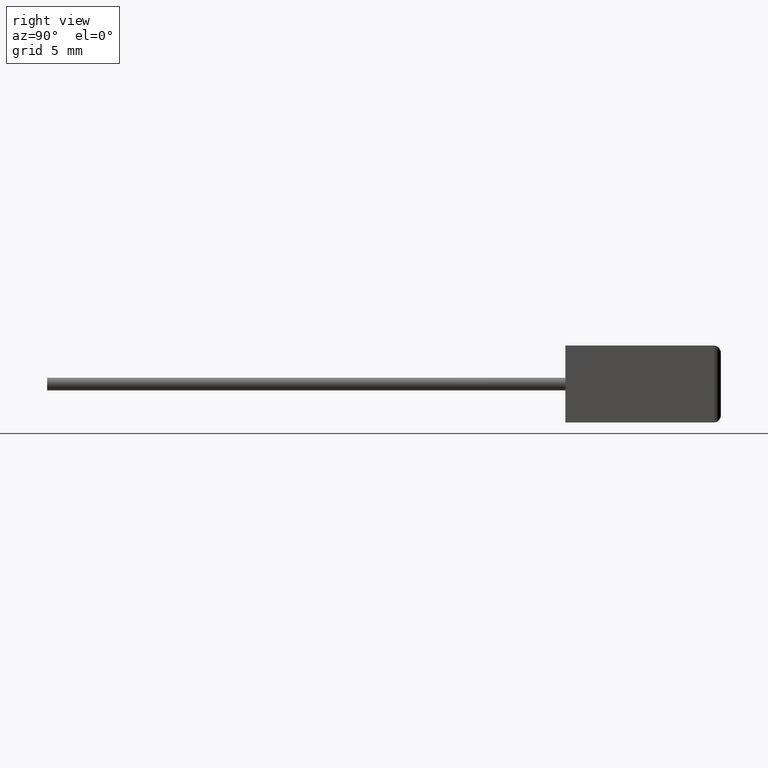
[diagram: clean part render]
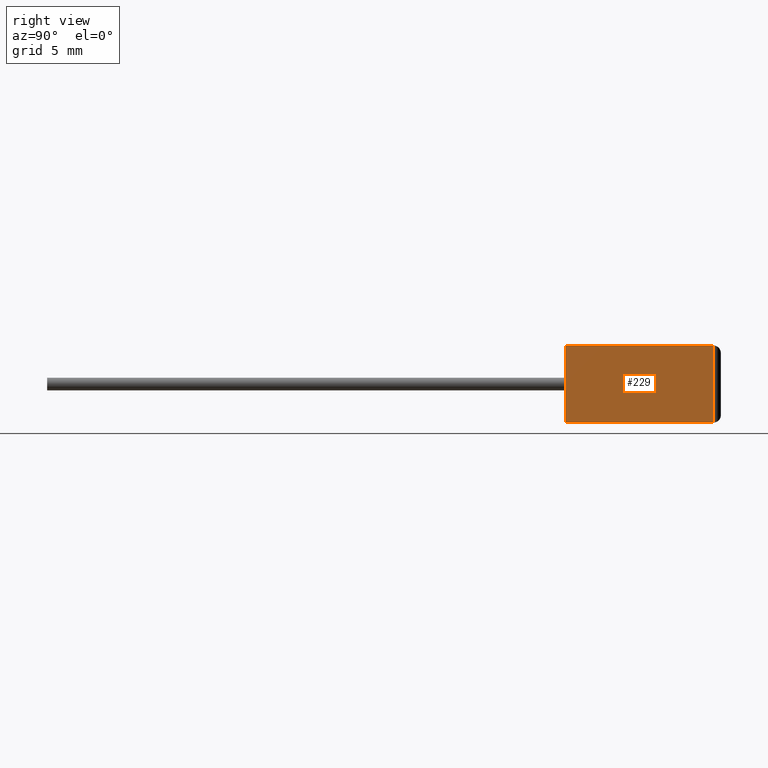
[diagram: same view with one face highlighted and labeled with its STEP entity id]
A machine part, right view. The second image highlights one B-rep face of the part: STEP entity #229.
In plain terms, the highlighted planar face has unit normal (-1, 0, 0).
Its self-contained STEP definition (entity closure, byte-faithful):
#8 = DIRECTION ( 'NONE',  ( -0.0000000000000000000, -0.0000000000000000000, -1.000000000000000000 ) ) ;
#71 = VERTEX_POINT ( 'NONE', #2208 ) ;
#82 = EDGE_CURVE ( 'NONE', #71, #1536, #95, .T. ) ;
#95 = LINE ( 'NONE', #1103, #718 ) ;
#152 = ORIENTED_EDGE ( 'NONE', *, *, #1038, .T. ) ;
#229 = ADVANCED_FACE ( 'NONE', ( #1772 ), #402, .F. ) ;
#250 = VECTOR ( 'NONE', #1057, 1000.000000000000000 ) ;
#381 = EDGE_CURVE ( 'NONE', #670, #1875, #2184, .T. ) ;
#402 = PLANE ( 'NONE',  #2327 ) ;
#418 = DIRECTION ( 'NONE',  ( -1.000000000000000000, 0.0000000000000000000, 0.0000000000000000000 ) ) ;
#530 = DIRECTION ( 'NONE',  ( -0.0000000000000000000, -0.0000000000000000000, 1.000000000000000000 ) ) ;
#611 = VECTOR ( 'NONE', #530, 1000.000000000000000 ) ;
#670 = VERTEX_POINT ( 'NONE', #2061 ) ;
#672 = CARTESIAN_POINT ( 'NONE',  ( 18.50000000000000000, 9.999999999999996400, 5.200000000000000200 ) ) ;
#718 = VECTOR ( 'NONE', #1636, 1000.000000000000000 ) ;
#722 = ORIENTED_EDGE ( 'NONE', *, *, #1363, .T. ) ;
#809 = CARTESIAN_POINT ( 'NONE',  ( 18.50000000000000000, 0.0000000000000000000, 5.200000000000000200 ) ) ;
#900 = CARTESIAN_POINT ( 'NONE',  ( 18.50000000000000000, 10.00000000000000000, 5.200000000000000200 ) ) ;
#1038 = EDGE_CURVE ( 'NONE', #71, #670, #1915, .T. ) ;
#1057 = DIRECTION ( 'NONE',  ( 0.0000000000000000000, 1.000000000000000000, 0.0000000000000000000 ) ) ;
#1103 = CARTESIAN_POINT ( 'NONE',  ( 18.50000000000000000, 0.0000000000000000000, 5.200000000000000200 ) ) ;
#1254 = CARTESIAN_POINT ( 'NONE',  ( 18.50000000000000000, 9.999999999999996400, 0.0000000000000000000 ) ) ;
#1338 = ORIENTED_EDGE ( 'NONE', *, *, #82, .F. ) ;
#1363 = EDGE_CURVE ( 'NONE', #1875, #1536, #2275, .T. ) ;
#1536 = VERTEX_POINT ( 'NONE', #672 ) ;
#1555 = CARTESIAN_POINT ( 'NONE',  ( 18.50000000000000000, 0.0000000000000000000, 5.200000000000000200 ) ) ;
#1564 = VECTOR ( 'NONE', #8, 1000.000000000000000 ) ;
#1636 = DIRECTION ( 'NONE',  ( 0.0000000000000000000, 1.000000000000000000, 0.0000000000000000000 ) ) ;
#1772 = FACE_OUTER_BOUND ( 'NONE', #2161, .T. ) ;
#1875 = VERTEX_POINT ( 'NONE', #1254 ) ;
#1915 = LINE ( 'NONE', #809, #1564 ) ;
#1982 = CARTESIAN_POINT ( 'NONE',  ( 18.50000000000000000, 0.0000000000000000000, 0.0000000000000000000 ) ) ;
#2061 = CARTESIAN_POINT ( 'NONE',  ( 18.50000000000000000, 0.0000000000000000000, 0.0000000000000000000 ) ) ;
#2086 = ORIENTED_EDGE ( 'NONE', *, *, #381, .T. ) ;
#2161 = EDGE_LOOP ( 'NONE', ( #2086, #722, #1338, #152 ) ) ;
#2184 = LINE ( 'NONE', #1982, #250 ) ;
#2208 = CARTESIAN_POINT ( 'NONE',  ( 18.50000000000000000, 0.0000000000000000000, 5.200000000000000200 ) ) ;
#2275 = LINE ( 'NONE', #900, #611 ) ;
#2311 = DIRECTION ( 'NONE',  ( 0.0000000000000000000, 0.0000000000000000000, 1.000000000000000000 ) ) ;
#2327 = AXIS2_PLACEMENT_3D ( 'NONE', #1555, #418, #2311 ) ;